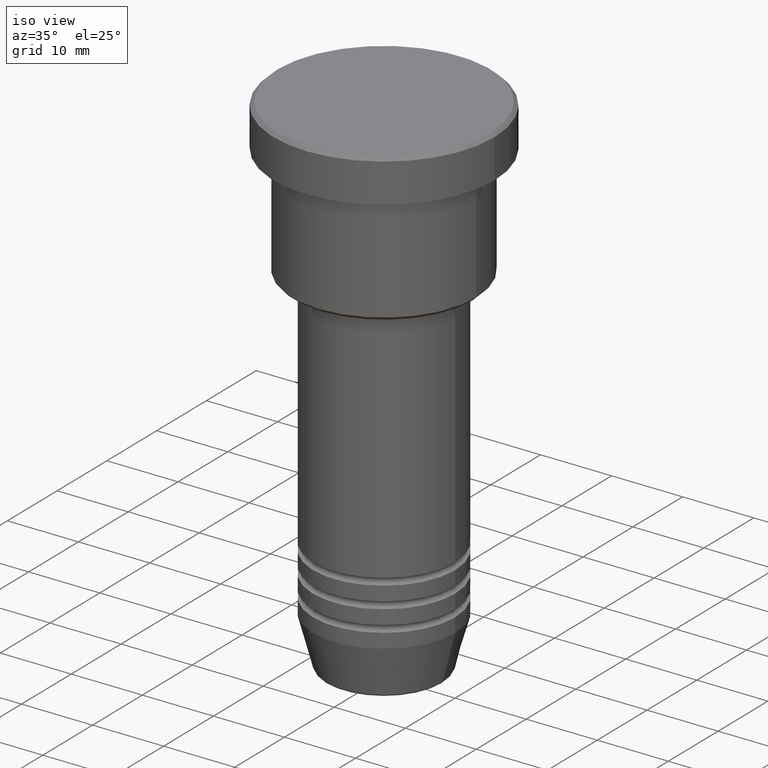
[diagram: clean part render]
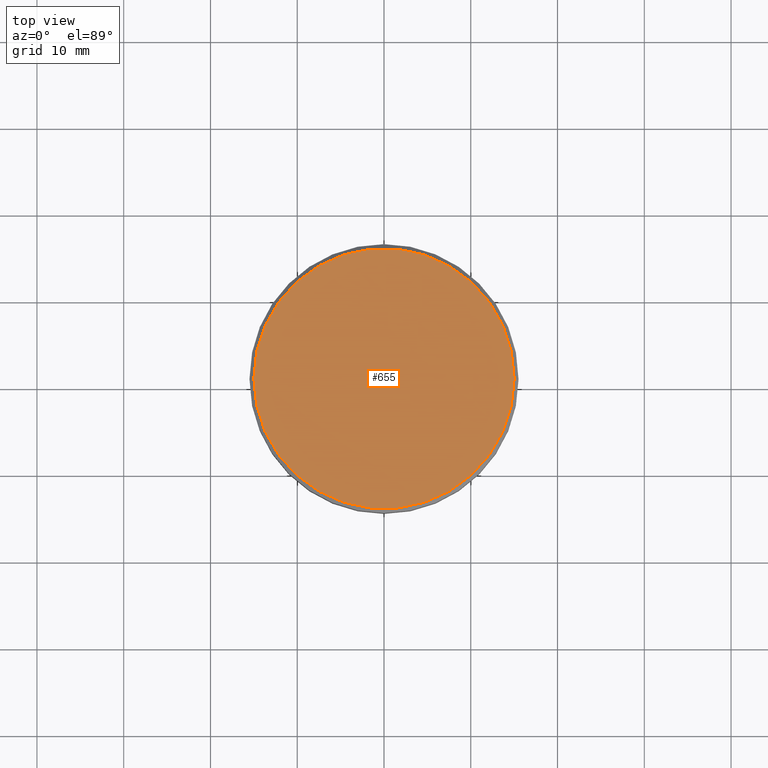
[diagram: tour spotlight — one face highlighted and labeled with its STEP entity id]
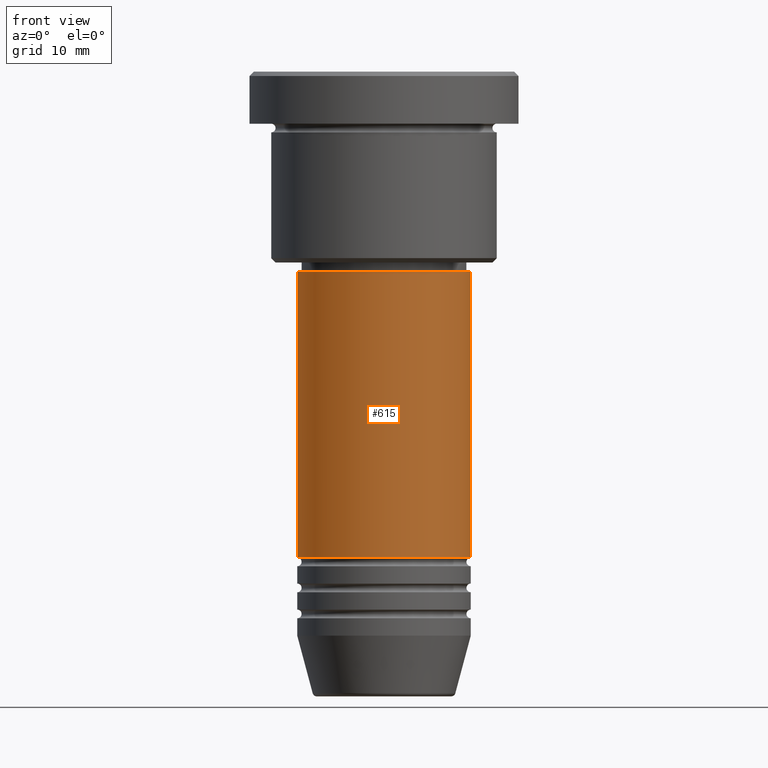
[diagram: tour spotlight — one face highlighted and labeled with its STEP entity id]
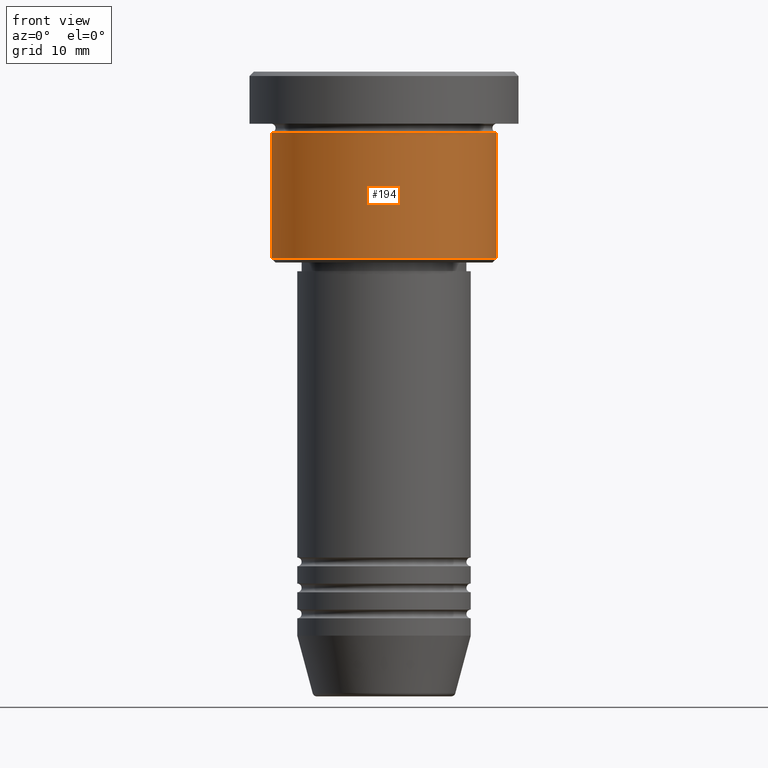
[diagram: tour spotlight — one face highlighted and labeled with its STEP entity id]
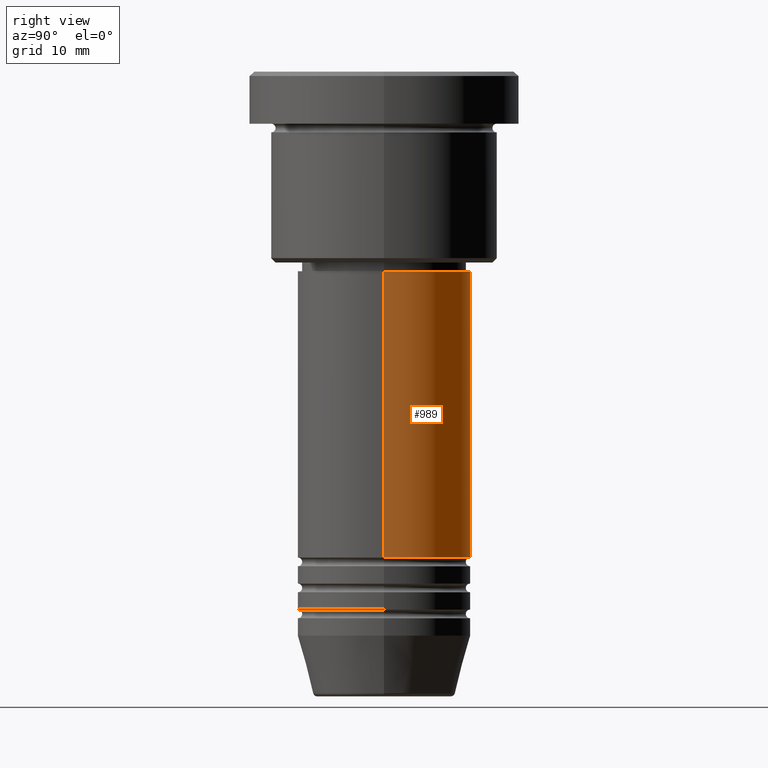
[diagram: tour spotlight — one face highlighted and labeled with its STEP entity id]
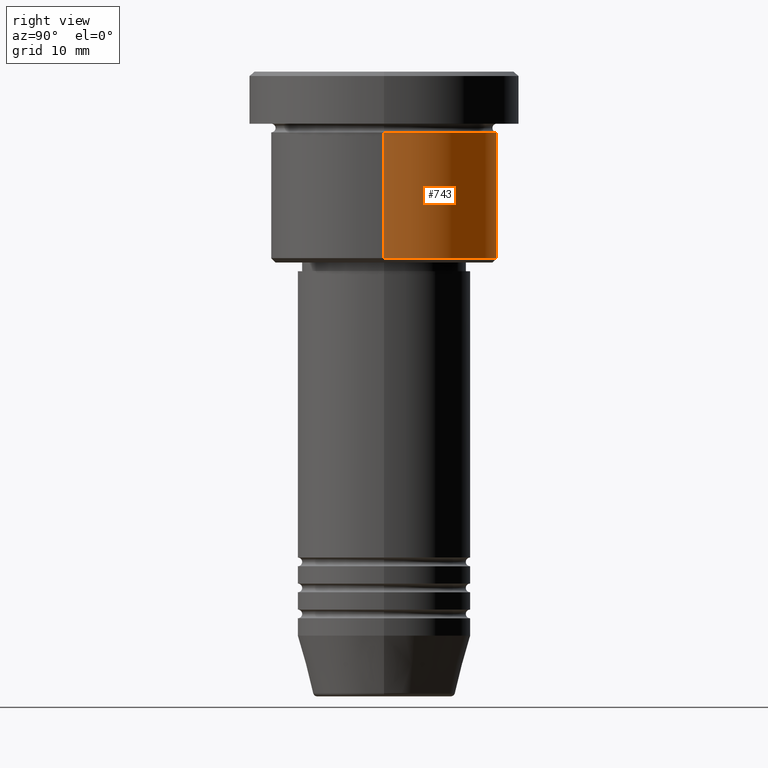
[diagram: tour spotlight — one face highlighted and labeled with its STEP entity id]
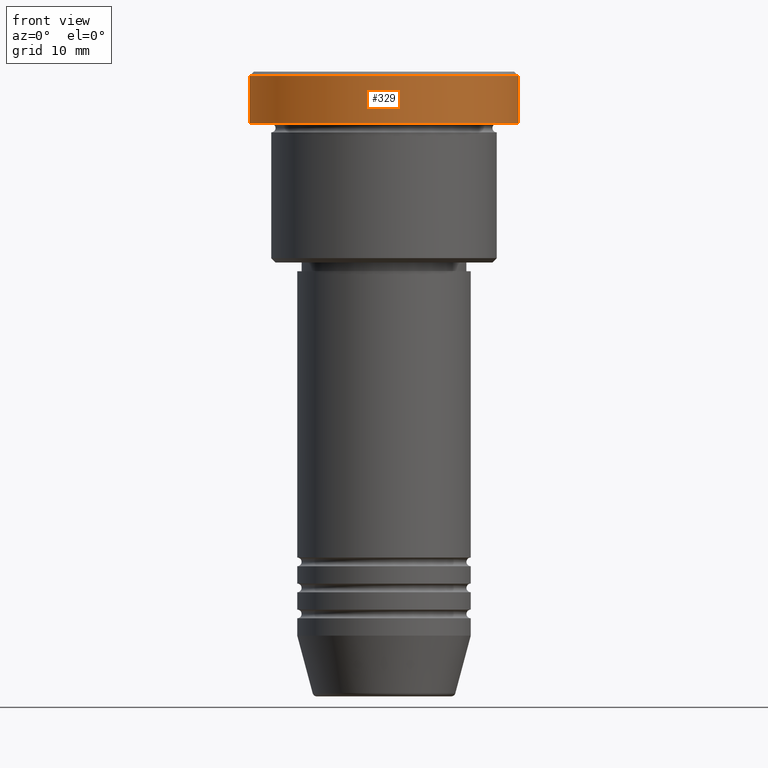
[diagram: tour spotlight — one face highlighted and labeled with its STEP entity id]
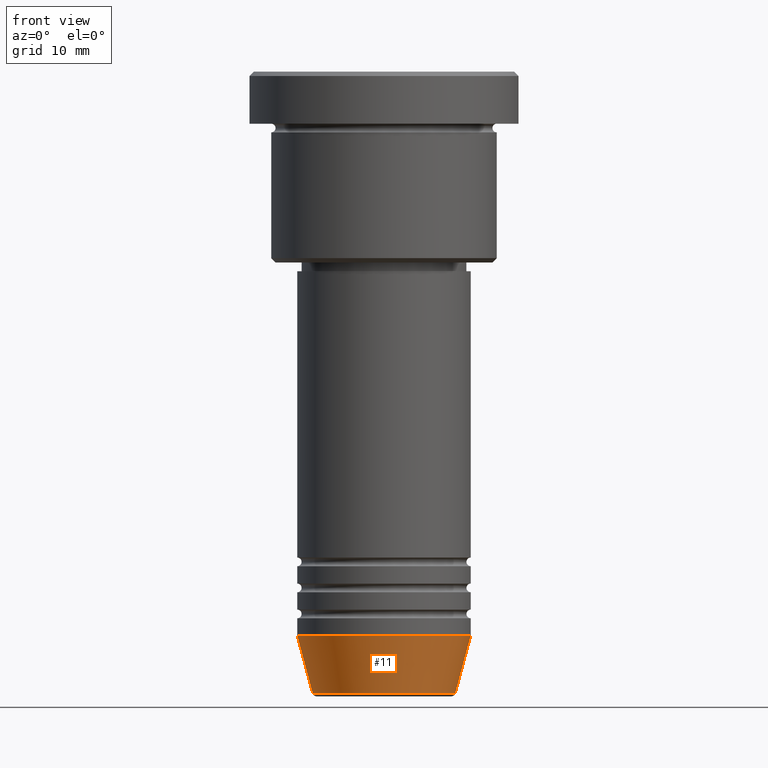
[diagram: tour spotlight — one face highlighted and labeled with its STEP entity id]
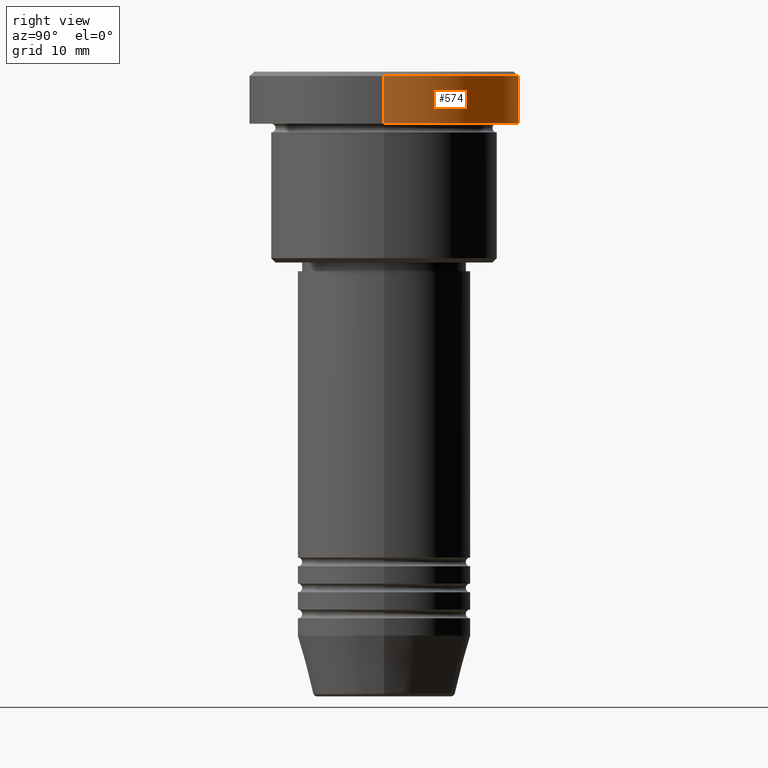
[diagram: tour spotlight — one face highlighted and labeled with its STEP entity id]
A machine part: a face-by-face anatomy tour. The part has 43 B-rep faces; the first image is the clean iso view, then the 8 largest visible faces are spotlighted one at a time (largest first), each with its STEP entity span.

Face 1 — top view, entity #655. In plain terms, the highlighted planar face has unit normal (0, -0, 1).
Definition (entity closure, byte-faithful):
#70 = AXIS2_PLACEMENT_3D ( 'NONE', #1127, #831, #937 ) ;
#166 = DIRECTION ( 'NONE',  ( -0.000000000000000000, -0.000000000000000000, 1.000000000000000000 ) ) ;
#203 = CARTESIAN_POINT ( 'NONE',  ( 15.00000000000000000, 1.867586368699713376E-15, 0.000000000000000000 ) ) ;
#233 = FACE_OUTER_BOUND ( 'NONE', #978, .T. ) ;
#244 = AXIS2_PLACEMENT_3D ( 'NONE', #964, #166, #621 ) ;
#450 = CIRCLE ( 'NONE', #244, 15.00000000000000000 ) ;
#621 = DIRECTION ( 'NONE',  ( 1.000000000000000000, 0.000000000000000000, 0.000000000000000000 ) ) ;
#633 = DIRECTION ( 'NONE',  ( 1.000000000000000000, 0.000000000000000000, 0.000000000000000000 ) ) ;
#650 = DIRECTION ( 'NONE',  ( -0.000000000000000000, -0.000000000000000000, 1.000000000000000000 ) ) ;
#655 = ADVANCED_FACE ( 'NONE', ( #233 ), #1130, .T. ) ;
#659 = CARTESIAN_POINT ( 'NONE',  ( -15.00000000000000000, 0.000000000000000000, 0.000000000000000000 ) ) ;
#818 = ORIENTED_EDGE ( 'NONE', *, *, #829, .T. ) ;
#829 = EDGE_CURVE ( 'NONE', #1003, #1039, #450, .T. ) ;
#831 = DIRECTION ( 'NONE',  ( 0.000000000000000000, -0.000000000000000000, 1.000000000000000000 ) ) ;
#878 = AXIS2_PLACEMENT_3D ( 'NONE', #1063, #650, #633 ) ;
#916 = EDGE_CURVE ( 'NONE', #1039, #1003, #1158, .T. ) ;
#937 = DIRECTION ( 'NONE',  ( 1.000000000000000000, 0.000000000000000000, 0.000000000000000000 ) ) ;
#964 = CARTESIAN_POINT ( 'NONE',  ( 0.000000000000000000, 0.000000000000000000, 0.000000000000000000 ) ) ;
#978 = EDGE_LOOP ( 'NONE', ( #818, #1153 ) ) ;
#1003 = VERTEX_POINT ( 'NONE', #659 ) ;
#1039 = VERTEX_POINT ( 'NONE', #203 ) ;
#1063 = CARTESIAN_POINT ( 'NONE',  ( 0.000000000000000000, 0.000000000000000000, 0.000000000000000000 ) ) ;
#1127 = CARTESIAN_POINT ( 'NONE',  ( 0.000000000000000000, 0.000000000000000000, 0.000000000000000000 ) ) ;
#1130 = PLANE ( 'NONE',  #70 ) ;
#1153 = ORIENTED_EDGE ( 'NONE', *, *, #916, .T. ) ;
#1158 = CIRCLE ( 'NONE', #878, 15.00000000000000000 ) ;

Face 2 — front view, entity #615. In plain terms, the highlighted cylindrical surface (partial cylindrical patch) has radius 10 mm, axis along (-0, -0, 1).
Definition (entity closure, byte-faithful):
#7 = CYLINDRICAL_SURFACE ( 'NONE', #125, 10.00000000000000000 ) ;
#33 = ORIENTED_EDGE ( 'NONE', *, *, #1027, .F. ) ;
#42 = CARTESIAN_POINT ( 'NONE',  ( 0.000000000000000000, 0.000000000000000000, 0.000000000000000000 ) ) ;
#48 = ORIENTED_EDGE ( 'NONE', *, *, #1114, .T. ) ;
#68 = CARTESIAN_POINT ( 'NONE',  ( -10.00000000000000000, 1.224646799147353256E-15, -23.00000000000000000 ) ) ;
#125 = AXIS2_PLACEMENT_3D ( 'NONE', #42, #581, #586 ) ;
#131 = ORIENTED_EDGE ( 'NONE', *, *, #1123, .F. ) ;
#163 = DIRECTION ( 'NONE',  ( -0.000000000000000000, -0.000000000000000000, 1.000000000000000000 ) ) ;
#195 = EDGE_LOOP ( 'NONE', ( #33, #48, #1141, #131 ) ) ;
#204 = CARTESIAN_POINT ( 'NONE',  ( 10.00000000000000000, 0.000000000000000000, -55.99999999999997868 ) ) ;
#251 = LINE ( 'NONE', #335, #957 ) ;
#263 = CIRCLE ( 'NONE', #409, 10.00000000000000000 ) ;
#335 = CARTESIAN_POINT ( 'NONE',  ( 10.00000000000000000, 0.000000000000000000, 0.000000000000000000 ) ) ;
#346 = CARTESIAN_POINT ( 'NONE',  ( -10.00000000000000000, 1.224646799147353256E-15, -55.99999999999997868 ) ) ;
#409 = AXIS2_PLACEMENT_3D ( 'NONE', #477, #566, #834 ) ;
#453 = AXIS2_PLACEMENT_3D ( 'NONE', #575, #671, #942 ) ;
#454 = EDGE_CURVE ( 'NONE', #535, #1108, #251, .T. ) ;
#474 = VERTEX_POINT ( 'NONE', #68 ) ;
#477 = CARTESIAN_POINT ( 'NONE',  ( 0.000000000000000000, 0.000000000000000000, -55.99999999999997868 ) ) ;
#535 = VERTEX_POINT ( 'NONE', #204 ) ;
#566 = DIRECTION ( 'NONE',  ( -0.000000000000000000, -0.000000000000000000, 1.000000000000000000 ) ) ;
#575 = CARTESIAN_POINT ( 'NONE',  ( 0.000000000000000000, 0.000000000000000000, -23.00000000000000000 ) ) ;
#581 = DIRECTION ( 'NONE',  ( -0.000000000000000000, -0.000000000000000000, 1.000000000000000000 ) ) ;
#586 = DIRECTION ( 'NONE',  ( 1.000000000000000000, 0.000000000000000000, 0.000000000000000000 ) ) ;
#615 = ADVANCED_FACE ( 'NONE', ( #813 ), #7, .T. ) ;
#671 = DIRECTION ( 'NONE',  ( -0.000000000000000000, -0.000000000000000000, 1.000000000000000000 ) ) ;
#742 = CARTESIAN_POINT ( 'NONE',  ( 10.00000000000000000, 0.000000000000000000, -23.00000000000000000 ) ) ;
#772 = VECTOR ( 'NONE', #1018, 1000.000000000000000 ) ;
#797 = VERTEX_POINT ( 'NONE', #346 ) ;
#813 = FACE_OUTER_BOUND ( 'NONE', #195, .T. ) ;
#834 = DIRECTION ( 'NONE',  ( 1.000000000000000000, 0.000000000000000000, 0.000000000000000000 ) ) ;
#942 = DIRECTION ( 'NONE',  ( 1.000000000000000000, 0.000000000000000000, 0.000000000000000000 ) ) ;
#955 = CIRCLE ( 'NONE', #453, 10.00000000000000000 ) ;
#957 = VECTOR ( 'NONE', #163, 1000.000000000000000 ) ;
#1018 = DIRECTION ( 'NONE',  ( -0.000000000000000000, -0.000000000000000000, 1.000000000000000000 ) ) ;
#1022 = CARTESIAN_POINT ( 'NONE',  ( -10.00000000000000000, 1.224646799147353256E-15, 0.000000000000000000 ) ) ;
#1027 = EDGE_CURVE ( 'NONE', #797, #474, #1119, .T. ) ;
#1108 = VERTEX_POINT ( 'NONE', #742 ) ;
#1114 = EDGE_CURVE ( 'NONE', #797, #535, #263, .T. ) ;
#1119 = LINE ( 'NONE', #1022, #772 ) ;
#1123 = EDGE_CURVE ( 'NONE', #474, #1108, #955, .T. ) ;
#1141 = ORIENTED_EDGE ( 'NONE', *, *, #454, .T. ) ;

Face 3 — front view, entity #194. In plain terms, the highlighted cylindrical surface (partial cylindrical patch) has radius 13 mm, axis along (-0, -0, 1).
Definition (entity closure, byte-faithful):
#6 = ORIENTED_EDGE ( 'NONE', *, *, #174, .T. ) ;
#17 = EDGE_CURVE ( 'NONE', #299, #324, #609, .T. ) ;
#137 = EDGE_CURVE ( 'NONE', #736, #1079, #1134, .T. ) ;
#174 = EDGE_CURVE ( 'NONE', #324, #1079, #442, .T. ) ;
#194 = ADVANCED_FACE ( 'NONE', ( #1004 ), #492, .T. ) ;
#231 = DIRECTION ( 'NONE',  ( 1.000000000000000000, 0.000000000000000000, 0.000000000000000000 ) ) ;
#237 = CARTESIAN_POINT ( 'NONE',  ( 0.000000000000000000, 0.000000000000000000, -6.999999999999995559 ) ) ;
#274 = ORIENTED_EDGE ( 'NONE', *, *, #17, .T. ) ;
#282 = VECTOR ( 'NONE', #355, 1000.000000000000000 ) ;
#296 = CARTESIAN_POINT ( 'NONE',  ( -13.00000000000000000, 1.592040838891559095E-15, 0.000000000000000000 ) ) ;
#299 = VERTEX_POINT ( 'NONE', #775 ) ;
#304 = AXIS2_PLACEMENT_3D ( 'NONE', #326, #851, #331 ) ;
#324 = VERTEX_POINT ( 'NONE', #946 ) ;
#326 = CARTESIAN_POINT ( 'NONE',  ( 0.000000000000000000, 0.000000000000000000, -21.49999999999997868 ) ) ;
#331 = DIRECTION ( 'NONE',  ( -1.000000000000000000, 0.000000000000000000, 0.000000000000000000 ) ) ;
#355 = DIRECTION ( 'NONE',  ( -0.000000000000000000, -0.000000000000000000, 1.000000000000000000 ) ) ;
#407 = ORIENTED_EDGE ( 'NONE', *, *, #137, .F. ) ;
#442 = LINE ( 'NONE', #1177, #282 ) ;
#492 = CYLINDRICAL_SURFACE ( 'NONE', #975, 13.00000000000000000 ) ;
#494 = LINE ( 'NONE', #296, #1054 ) ;
#609 = CIRCLE ( 'NONE', #304, 13.00000000000000000 ) ;
#625 = AXIS2_PLACEMENT_3D ( 'NONE', #237, #1042, #231 ) ;
#658 = CARTESIAN_POINT ( 'NONE',  ( 0.000000000000000000, 0.000000000000000000, 0.000000000000000000 ) ) ;
#693 = ORIENTED_EDGE ( 'NONE', *, *, #724, .F. ) ;
#724 = EDGE_CURVE ( 'NONE', #299, #736, #494, .T. ) ;
#736 = VERTEX_POINT ( 'NONE', #1019 ) ;
#775 = CARTESIAN_POINT ( 'NONE',  ( -13.00000000000000000, 1.592040838891559095E-15, -21.49999999999997868 ) ) ;
#847 = DIRECTION ( 'NONE',  ( -0.000000000000000000, -0.000000000000000000, 1.000000000000000000 ) ) ;
#851 = DIRECTION ( 'NONE',  ( -0.000000000000000000, -0.000000000000000000, 1.000000000000000000 ) ) ;
#866 = EDGE_LOOP ( 'NONE', ( #693, #274, #6, #407 ) ) ;
#928 = DIRECTION ( 'NONE',  ( 1.000000000000000000, 0.000000000000000000, 0.000000000000000000 ) ) ;
#946 = CARTESIAN_POINT ( 'NONE',  ( 13.00000000000000000, 0.000000000000000000, -21.49999999999997868 ) ) ;
#975 = AXIS2_PLACEMENT_3D ( 'NONE', #658, #1008, #928 ) ;
#1004 = FACE_OUTER_BOUND ( 'NONE', #866, .T. ) ;
#1008 = DIRECTION ( 'NONE',  ( -0.000000000000000000, -0.000000000000000000, 1.000000000000000000 ) ) ;
#1009 = CARTESIAN_POINT ( 'NONE',  ( 13.00000000000000000, 0.000000000000000000, -6.999999999999995559 ) ) ;
#1019 = CARTESIAN_POINT ( 'NONE',  ( -13.00000000000000000, 1.592040838891559095E-15, -6.999999999999995559 ) ) ;
#1042 = DIRECTION ( 'NONE',  ( -0.000000000000000000, -0.000000000000000000, 1.000000000000000000 ) ) ;
#1054 = VECTOR ( 'NONE', #847, 1000.000000000000000 ) ;
#1079 = VERTEX_POINT ( 'NONE', #1009 ) ;
#1134 = CIRCLE ( 'NONE', #625, 13.00000000000000000 ) ;
#1177 = CARTESIAN_POINT ( 'NONE',  ( 13.00000000000000000, 0.000000000000000000, 0.000000000000000000 ) ) ;

Face 4 — right view, entity #989. In plain terms, the highlighted cylindrical surface (partial cylindrical patch) has radius 10 mm, axis along (-0, -0, 1).
Definition (entity closure, byte-faithful):
#9 = DIRECTION ( 'NONE',  ( -0.000000000000000000, -0.000000000000000000, 1.000000000000000000 ) ) ;
#68 = CARTESIAN_POINT ( 'NONE',  ( -10.00000000000000000, 1.224646799147353256E-15, -23.00000000000000000 ) ) ;
#93 = FACE_OUTER_BOUND ( 'NONE', #184, .T. ) ;
#94 = CIRCLE ( 'NONE', #551, 10.00000000000000000 ) ;
#108 = DIRECTION ( 'NONE',  ( 1.000000000000000000, 0.000000000000000000, 0.000000000000000000 ) ) ;
#163 = DIRECTION ( 'NONE',  ( -0.000000000000000000, -0.000000000000000000, 1.000000000000000000 ) ) ;
#184 = EDGE_LOOP ( 'NONE', ( #938, #892, #537, #377 ) ) ;
#204 = CARTESIAN_POINT ( 'NONE',  ( 10.00000000000000000, 0.000000000000000000, -55.99999999999997868 ) ) ;
#251 = LINE ( 'NONE', #335, #957 ) ;
#283 = CARTESIAN_POINT ( 'NONE',  ( 0.000000000000000000, 0.000000000000000000, 0.000000000000000000 ) ) ;
#335 = CARTESIAN_POINT ( 'NONE',  ( 10.00000000000000000, 0.000000000000000000, 0.000000000000000000 ) ) ;
#346 = CARTESIAN_POINT ( 'NONE',  ( -10.00000000000000000, 1.224646799147353256E-15, -55.99999999999997868 ) ) ;
#369 = DIRECTION ( 'NONE',  ( 1.000000000000000000, 0.000000000000000000, 0.000000000000000000 ) ) ;
#377 = ORIENTED_EDGE ( 'NONE', *, *, #454, .F. ) ;
#398 = CARTESIAN_POINT ( 'NONE',  ( 0.000000000000000000, 0.000000000000000000, -23.00000000000000000 ) ) ;
#454 = EDGE_CURVE ( 'NONE', #535, #1108, #251, .T. ) ;
#455 = CARTESIAN_POINT ( 'NONE',  ( 0.000000000000000000, 0.000000000000000000, -55.99999999999997868 ) ) ;
#474 = VERTEX_POINT ( 'NONE', #68 ) ;
#535 = VERTEX_POINT ( 'NONE', #204 ) ;
#537 = ORIENTED_EDGE ( 'NONE', *, *, #1068, .F. ) ;
#551 = AXIS2_PLACEMENT_3D ( 'NONE', #398, #757, #761 ) ;
#567 = CIRCLE ( 'NONE', #647, 10.00000000000000000 ) ;
#647 = AXIS2_PLACEMENT_3D ( 'NONE', #455, #913, #108 ) ;
#742 = CARTESIAN_POINT ( 'NONE',  ( 10.00000000000000000, 0.000000000000000000, -23.00000000000000000 ) ) ;
#757 = DIRECTION ( 'NONE',  ( -0.000000000000000000, -0.000000000000000000, 1.000000000000000000 ) ) ;
#761 = DIRECTION ( 'NONE',  ( 1.000000000000000000, 0.000000000000000000, 0.000000000000000000 ) ) ;
#772 = VECTOR ( 'NONE', #1018, 1000.000000000000000 ) ;
#797 = VERTEX_POINT ( 'NONE', #346 ) ;
#816 = CYLINDRICAL_SURFACE ( 'NONE', #1183, 10.00000000000000000 ) ;
#892 = ORIENTED_EDGE ( 'NONE', *, *, #1027, .T. ) ;
#913 = DIRECTION ( 'NONE',  ( -0.000000000000000000, -0.000000000000000000, 1.000000000000000000 ) ) ;
#929 = EDGE_CURVE ( 'NONE', #535, #797, #567, .T. ) ;
#938 = ORIENTED_EDGE ( 'NONE', *, *, #929, .T. ) ;
#957 = VECTOR ( 'NONE', #163, 1000.000000000000000 ) ;
#989 = ADVANCED_FACE ( 'NONE', ( #93 ), #816, .T. ) ;
#1018 = DIRECTION ( 'NONE',  ( -0.000000000000000000, -0.000000000000000000, 1.000000000000000000 ) ) ;
#1022 = CARTESIAN_POINT ( 'NONE',  ( -10.00000000000000000, 1.224646799147353256E-15, 0.000000000000000000 ) ) ;
#1027 = EDGE_CURVE ( 'NONE', #797, #474, #1119, .T. ) ;
#1068 = EDGE_CURVE ( 'NONE', #1108, #474, #94, .T. ) ;
#1108 = VERTEX_POINT ( 'NONE', #742 ) ;
#1119 = LINE ( 'NONE', #1022, #772 ) ;
#1183 = AXIS2_PLACEMENT_3D ( 'NONE', #283, #9, #369 ) ;

Face 5 — right view, entity #743. In plain terms, the highlighted cylindrical surface (partial cylindrical patch) has radius 13 mm, axis along (-0, -0, 1).
Definition (entity closure, byte-faithful):
#18 = CIRCLE ( 'NONE', #684, 13.00000000000000000 ) ;
#23 = DIRECTION ( 'NONE',  ( -0.000000000000000000, -0.000000000000000000, 1.000000000000000000 ) ) ;
#32 = DIRECTION ( 'NONE',  ( -0.000000000000000000, -0.000000000000000000, 1.000000000000000000 ) ) ;
#101 = EDGE_LOOP ( 'NONE', ( #155, #877, #812, #342 ) ) ;
#155 = ORIENTED_EDGE ( 'NONE', *, *, #220, .T. ) ;
#174 = EDGE_CURVE ( 'NONE', #324, #1079, #442, .T. ) ;
#220 = EDGE_CURVE ( 'NONE', #324, #299, #319, .T. ) ;
#282 = VECTOR ( 'NONE', #355, 1000.000000000000000 ) ;
#296 = CARTESIAN_POINT ( 'NONE',  ( -13.00000000000000000, 1.592040838891559095E-15, 0.000000000000000000 ) ) ;
#299 = VERTEX_POINT ( 'NONE', #775 ) ;
#319 = CIRCLE ( 'NONE', #456, 13.00000000000000000 ) ;
#324 = VERTEX_POINT ( 'NONE', #946 ) ;
#342 = ORIENTED_EDGE ( 'NONE', *, *, #174, .F. ) ;
#355 = DIRECTION ( 'NONE',  ( -0.000000000000000000, -0.000000000000000000, 1.000000000000000000 ) ) ;
#391 = CARTESIAN_POINT ( 'NONE',  ( 0.000000000000000000, 0.000000000000000000, -21.49999999999997868 ) ) ;
#442 = LINE ( 'NONE', #1177, #282 ) ;
#456 = AXIS2_PLACEMENT_3D ( 'NONE', #391, #23, #755 ) ;
#479 = CYLINDRICAL_SURFACE ( 'NONE', #1078, 13.00000000000000000 ) ;
#494 = LINE ( 'NONE', #296, #1054 ) ;
#684 = AXIS2_PLACEMENT_3D ( 'NONE', #948, #858, #1095 ) ;
#724 = EDGE_CURVE ( 'NONE', #299, #736, #494, .T. ) ;
#736 = VERTEX_POINT ( 'NONE', #1019 ) ;
#743 = ADVANCED_FACE ( 'NONE', ( #926 ), #479, .T. ) ;
#751 = DIRECTION ( 'NONE',  ( 1.000000000000000000, 0.000000000000000000, 0.000000000000000000 ) ) ;
#755 = DIRECTION ( 'NONE',  ( -1.000000000000000000, 0.000000000000000000, 0.000000000000000000 ) ) ;
#775 = CARTESIAN_POINT ( 'NONE',  ( -13.00000000000000000, 1.592040838891559095E-15, -21.49999999999997868 ) ) ;
#812 = ORIENTED_EDGE ( 'NONE', *, *, #1180, .F. ) ;
#835 = CARTESIAN_POINT ( 'NONE',  ( 0.000000000000000000, 0.000000000000000000, 0.000000000000000000 ) ) ;
#847 = DIRECTION ( 'NONE',  ( -0.000000000000000000, -0.000000000000000000, 1.000000000000000000 ) ) ;
#858 = DIRECTION ( 'NONE',  ( -0.000000000000000000, -0.000000000000000000, 1.000000000000000000 ) ) ;
#877 = ORIENTED_EDGE ( 'NONE', *, *, #724, .T. ) ;
#926 = FACE_OUTER_BOUND ( 'NONE', #101, .T. ) ;
#946 = CARTESIAN_POINT ( 'NONE',  ( 13.00000000000000000, 0.000000000000000000, -21.49999999999997868 ) ) ;
#948 = CARTESIAN_POINT ( 'NONE',  ( 0.000000000000000000, 0.000000000000000000, -6.999999999999995559 ) ) ;
#1009 = CARTESIAN_POINT ( 'NONE',  ( 13.00000000000000000, 0.000000000000000000, -6.999999999999995559 ) ) ;
#1019 = CARTESIAN_POINT ( 'NONE',  ( -13.00000000000000000, 1.592040838891559095E-15, -6.999999999999995559 ) ) ;
#1054 = VECTOR ( 'NONE', #847, 1000.000000000000000 ) ;
#1078 = AXIS2_PLACEMENT_3D ( 'NONE', #835, #32, #751 ) ;
#1079 = VERTEX_POINT ( 'NONE', #1009 ) ;
#1095 = DIRECTION ( 'NONE',  ( 1.000000000000000000, 0.000000000000000000, 0.000000000000000000 ) ) ;
#1177 = CARTESIAN_POINT ( 'NONE',  ( 13.00000000000000000, 0.000000000000000000, 0.000000000000000000 ) ) ;
#1180 = EDGE_CURVE ( 'NONE', #1079, #736, #18, .T. ) ;

Face 6 — front view, entity #329. In plain terms, the highlighted cylindrical surface (partial cylindrical patch) has radius 15.5 mm, axis along (-0, -0, 1).
Definition (entity closure, byte-faithful):
#36 = LINE ( 'NONE', #217, #96 ) ;
#56 = CARTESIAN_POINT ( 'NONE',  ( 15.50000000000000000, 0.000000000000000000, -5.999999999999995559 ) ) ;
#66 = EDGE_CURVE ( 'NONE', #907, #1007, #737, .T. ) ;
#69 = AXIS2_PLACEMENT_3D ( 'NONE', #544, #990, #437 ) ;
#76 = EDGE_LOOP ( 'NONE', ( #971, #571, #521, #352 ) ) ;
#96 = VECTOR ( 'NONE', #917, 1000.000000000000000 ) ;
#139 = CARTESIAN_POINT ( 'NONE',  ( 0.000000000000000000, 0.000000000000000000, 0.000000000000000000 ) ) ;
#165 = EDGE_CURVE ( 'NONE', #956, #323, #993, .T. ) ;
#213 = EDGE_CURVE ( 'NONE', #323, #907, #36, .T. ) ;
#217 = CARTESIAN_POINT ( 'NONE',  ( 15.50000000000000000, 0.000000000000000000, 0.000000000000000000 ) ) ;
#323 = VERTEX_POINT ( 'NONE', #56 ) ;
#329 = ADVANCED_FACE ( 'NONE', ( #1143 ), #959, .T. ) ;
#352 = ORIENTED_EDGE ( 'NONE', *, *, #66, .T. ) ;
#420 = CARTESIAN_POINT ( 'NONE',  ( 15.50000000000000000, 0.000000000000000000, -0.5000000000000125455 ) ) ;
#430 = DIRECTION ( 'NONE',  ( 1.000000000000000000, 0.000000000000000000, 0.000000000000000000 ) ) ;
#437 = DIRECTION ( 'NONE',  ( 1.000000000000000000, 0.000000000000000000, 0.000000000000000000 ) ) ;
#438 = CARTESIAN_POINT ( 'NONE',  ( -15.50000000000000000, 1.898202538678397557E-15, 0.000000000000000000 ) ) ;
#515 = DIRECTION ( 'NONE',  ( -0.000000000000000000, -0.000000000000000000, 1.000000000000000000 ) ) ;
#521 = ORIENTED_EDGE ( 'NONE', *, *, #213, .T. ) ;
#524 = DIRECTION ( 'NONE',  ( 0.000000000000000000, 0.000000000000000000, -1.000000000000000000 ) ) ;
#544 = CARTESIAN_POINT ( 'NONE',  ( 0.000000000000000000, 0.000000000000000000, -5.999999999999995559 ) ) ;
#571 = ORIENTED_EDGE ( 'NONE', *, *, #165, .T. ) ;
#616 = LINE ( 'NONE', #438, #1033 ) ;
#678 = CARTESIAN_POINT ( 'NONE',  ( -15.50000000000000000, 1.898202538678397557E-15, -0.5000000000000125455 ) ) ;
#698 = DIRECTION ( 'NONE',  ( -0.000000000000000000, -0.000000000000000000, 1.000000000000000000 ) ) ;
#737 = CIRCLE ( 'NONE', #1040, 15.50000000000000000 ) ;
#804 = EDGE_CURVE ( 'NONE', #956, #1007, #616, .T. ) ;
#862 = DIRECTION ( 'NONE',  ( 1.000000000000000000, 0.000000000000000000, 0.000000000000000000 ) ) ;
#879 = AXIS2_PLACEMENT_3D ( 'NONE', #139, #515, #862 ) ;
#907 = VERTEX_POINT ( 'NONE', #420 ) ;
#917 = DIRECTION ( 'NONE',  ( -0.000000000000000000, -0.000000000000000000, 1.000000000000000000 ) ) ;
#956 = VERTEX_POINT ( 'NONE', #1107 ) ;
#959 = CYLINDRICAL_SURFACE ( 'NONE', #879, 15.50000000000000000 ) ;
#971 = ORIENTED_EDGE ( 'NONE', *, *, #804, .F. ) ;
#990 = DIRECTION ( 'NONE',  ( -0.000000000000000000, -0.000000000000000000, 1.000000000000000000 ) ) ;
#993 = CIRCLE ( 'NONE', #69, 15.50000000000000000 ) ;
#1007 = VERTEX_POINT ( 'NONE', #678 ) ;
#1033 = VECTOR ( 'NONE', #698, 1000.000000000000000 ) ;
#1040 = AXIS2_PLACEMENT_3D ( 'NONE', #1048, #524, #430 ) ;
#1048 = CARTESIAN_POINT ( 'NONE',  ( 0.000000000000000000, 0.000000000000000000, -0.5000000000000125455 ) ) ;
#1107 = CARTESIAN_POINT ( 'NONE',  ( -15.50000000000000000, 1.898202538678397557E-15, -5.999999999999995559 ) ) ;
#1143 = FACE_OUTER_BOUND ( 'NONE', #76, .T. ) ;

Face 7 — front view, entity #11. In plain terms, the highlighted conical surface has half-angle 15 deg.
Definition (entity closure, byte-faithful):
#11 = ADVANCED_FACE ( 'NONE', ( #941 ), #78, .T. ) ;
#15 = VERTEX_POINT ( 'NONE', #857 ) ;
#41 = DIRECTION ( 'NONE',  ( 1.000000000000000000, 0.000000000000000000, 0.000000000000000000 ) ) ;
#61 = DIRECTION ( 'NONE',  ( -0.000000000000000000, -0.000000000000000000, 1.000000000000000000 ) ) ;
#78 = CONICAL_SURFACE ( 'NONE', #344, 10.00000000000000000, 0.2617993877991500740 ) ;
#140 = DIRECTION ( 'NONE',  ( -0.000000000000000000, -0.000000000000000000, 1.000000000000000000 ) ) ;
#241 = EDGE_CURVE ( 'NONE', #980, #15, #248, .T. ) ;
#248 = CIRCLE ( 'NONE', #773, 8.223655072137187716 ) ;
#252 = EDGE_CURVE ( 'NONE', #15, #710, #653, .T. ) ;
#260 = ORIENTED_EDGE ( 'NONE', *, *, #252, .T. ) ;
#344 = AXIS2_PLACEMENT_3D ( 'NONE', #1165, #140, #503 ) ;
#359 = CIRCLE ( 'NONE', #1083, 10.00000000000000000 ) ;
#419 = EDGE_CURVE ( 'NONE', #526, #710, #359, .T. ) ;
#473 = CARTESIAN_POINT ( 'NONE',  ( 10.00000000000000000, 0.000000000000000000, -65.00000000000000000 ) ) ;
#503 = DIRECTION ( 'NONE',  ( 1.000000000000000000, 0.000000000000000000, 0.000000000000000000 ) ) ;
#526 = VERTEX_POINT ( 'NONE', #976 ) ;
#583 = CARTESIAN_POINT ( 'NONE',  ( 0.000000000000000000, 0.000000000000000000, -71.62940952255127058 ) ) ;
#593 = ORIENTED_EDGE ( 'NONE', *, *, #419, .F. ) ;
#610 = LINE ( 'NONE', #717, #791 ) ;
#640 = CARTESIAN_POINT ( 'NONE',  ( -8.223655072137187716, 1.115877042642911856E-15, -71.62940952255127058 ) ) ;
#653 = LINE ( 'NONE', #828, #703 ) ;
#703 = VECTOR ( 'NONE', #1016, 1000.000000000000000 ) ;
#710 = VERTEX_POINT ( 'NONE', #473 ) ;
#714 = EDGE_LOOP ( 'NONE', ( #1020, #802, #260, #593 ) ) ;
#717 = CARTESIAN_POINT ( 'NONE',  ( -10.00000000000000000, 1.224646799147353256E-15, -65.00000000000000000 ) ) ;
#738 = DIRECTION ( 'NONE',  ( -0.000000000000000000, -0.000000000000000000, 1.000000000000000000 ) ) ;
#773 = AXIS2_PLACEMENT_3D ( 'NONE', #583, #738, #41 ) ;
#791 = VECTOR ( 'NONE', #1077, 1000.000000000000000 ) ;
#802 = ORIENTED_EDGE ( 'NONE', *, *, #241, .T. ) ;
#828 = CARTESIAN_POINT ( 'NONE',  ( 10.00000000000000000, 0.000000000000000000, -65.00000000000000000 ) ) ;
#856 = DIRECTION ( 'NONE',  ( 1.000000000000000000, 0.000000000000000000, 0.000000000000000000 ) ) ;
#857 = CARTESIAN_POINT ( 'NONE',  ( 8.223655072137187716, 0.000000000000000000, -71.62940952255127058 ) ) ;
#896 = EDGE_CURVE ( 'NONE', #980, #526, #610, .T. ) ;
#941 = FACE_OUTER_BOUND ( 'NONE', #714, .T. ) ;
#976 = CARTESIAN_POINT ( 'NONE',  ( -10.00000000000000000, 1.224646799147353256E-15, -65.00000000000000000 ) ) ;
#980 = VERTEX_POINT ( 'NONE', #640 ) ;
#1016 = DIRECTION ( 'NONE',  ( 0.2588190451025213501, 0.000000000000000000, 0.9659258262890680902 ) ) ;
#1020 = ORIENTED_EDGE ( 'NONE', *, *, #896, .F. ) ;
#1047 = CARTESIAN_POINT ( 'NONE',  ( 0.000000000000000000, 0.000000000000000000, -65.00000000000000000 ) ) ;
#1077 = DIRECTION ( 'NONE',  ( -0.2588190451025213501, 3.169619151431772337E-17, 0.9659258262890680902 ) ) ;
#1083 = AXIS2_PLACEMENT_3D ( 'NONE', #1047, #61, #856 ) ;
#1165 = CARTESIAN_POINT ( 'NONE',  ( 0.000000000000000000, 0.000000000000000000, -65.00000000000000000 ) ) ;

Face 8 — right view, entity #574. In plain terms, the highlighted cylindrical surface (partial cylindrical patch) has radius 15.5 mm, axis along (-0, -0, 1).
Definition (entity closure, byte-faithful):
#36 = LINE ( 'NONE', #217, #96 ) ;
#50 = EDGE_CURVE ( 'NONE', #1007, #907, #1061, .T. ) ;
#54 = ORIENTED_EDGE ( 'NONE', *, *, #804, .T. ) ;
#56 = CARTESIAN_POINT ( 'NONE',  ( 15.50000000000000000, 0.000000000000000000, -5.999999999999995559 ) ) ;
#84 = CARTESIAN_POINT ( 'NONE',  ( 0.000000000000000000, 0.000000000000000000, 0.000000000000000000 ) ) ;
#96 = VECTOR ( 'NONE', #917, 1000.000000000000000 ) ;
#129 = AXIS2_PLACEMENT_3D ( 'NONE', #691, #133, #246 ) ;
#133 = DIRECTION ( 'NONE',  ( 0.000000000000000000, 0.000000000000000000, -1.000000000000000000 ) ) ;
#185 = FACE_OUTER_BOUND ( 'NONE', #848, .T. ) ;
#213 = EDGE_CURVE ( 'NONE', #323, #907, #36, .T. ) ;
#217 = CARTESIAN_POINT ( 'NONE',  ( 15.50000000000000000, 0.000000000000000000, 0.000000000000000000 ) ) ;
#246 = DIRECTION ( 'NONE',  ( 1.000000000000000000, 0.000000000000000000, 0.000000000000000000 ) ) ;
#323 = VERTEX_POINT ( 'NONE', #56 ) ;
#362 = CARTESIAN_POINT ( 'NONE',  ( 0.000000000000000000, 0.000000000000000000, -5.999999999999995559 ) ) ;
#420 = CARTESIAN_POINT ( 'NONE',  ( 15.50000000000000000, 0.000000000000000000, -0.5000000000000125455 ) ) ;
#438 = CARTESIAN_POINT ( 'NONE',  ( -15.50000000000000000, 1.898202538678397557E-15, 0.000000000000000000 ) ) ;
#441 = DIRECTION ( 'NONE',  ( -0.000000000000000000, -0.000000000000000000, 1.000000000000000000 ) ) ;
#485 = AXIS2_PLACEMENT_3D ( 'NONE', #362, #886, #893 ) ;
#543 = EDGE_CURVE ( 'NONE', #323, #956, #700, .T. ) ;
#574 = ADVANCED_FACE ( 'NONE', ( #185 ), #1072, .T. ) ;
#616 = LINE ( 'NONE', #438, #1033 ) ;
#624 = AXIS2_PLACEMENT_3D ( 'NONE', #84, #441, #987 ) ;
#657 = ORIENTED_EDGE ( 'NONE', *, *, #50, .T. ) ;
#678 = CARTESIAN_POINT ( 'NONE',  ( -15.50000000000000000, 1.898202538678397557E-15, -0.5000000000000125455 ) ) ;
#691 = CARTESIAN_POINT ( 'NONE',  ( 0.000000000000000000, 0.000000000000000000, -0.5000000000000125455 ) ) ;
#698 = DIRECTION ( 'NONE',  ( -0.000000000000000000, -0.000000000000000000, 1.000000000000000000 ) ) ;
#700 = CIRCLE ( 'NONE', #485, 15.50000000000000000 ) ;
#725 = ORIENTED_EDGE ( 'NONE', *, *, #213, .F. ) ;
#804 = EDGE_CURVE ( 'NONE', #956, #1007, #616, .T. ) ;
#848 = EDGE_LOOP ( 'NONE', ( #1046, #54, #657, #725 ) ) ;
#886 = DIRECTION ( 'NONE',  ( -0.000000000000000000, -0.000000000000000000, 1.000000000000000000 ) ) ;
#893 = DIRECTION ( 'NONE',  ( 1.000000000000000000, 0.000000000000000000, 0.000000000000000000 ) ) ;
#907 = VERTEX_POINT ( 'NONE', #420 ) ;
#917 = DIRECTION ( 'NONE',  ( -0.000000000000000000, -0.000000000000000000, 1.000000000000000000 ) ) ;
#956 = VERTEX_POINT ( 'NONE', #1107 ) ;
#987 = DIRECTION ( 'NONE',  ( 1.000000000000000000, 0.000000000000000000, 0.000000000000000000 ) ) ;
#1007 = VERTEX_POINT ( 'NONE', #678 ) ;
#1033 = VECTOR ( 'NONE', #698, 1000.000000000000000 ) ;
#1046 = ORIENTED_EDGE ( 'NONE', *, *, #543, .T. ) ;
#1061 = CIRCLE ( 'NONE', #129, 15.50000000000000000 ) ;
#1072 = CYLINDRICAL_SURFACE ( 'NONE', #624, 15.50000000000000000 ) ;
#1107 = CARTESIAN_POINT ( 'NONE',  ( -15.50000000000000000, 1.898202538678397557E-15, -5.999999999999995559 ) ) ;